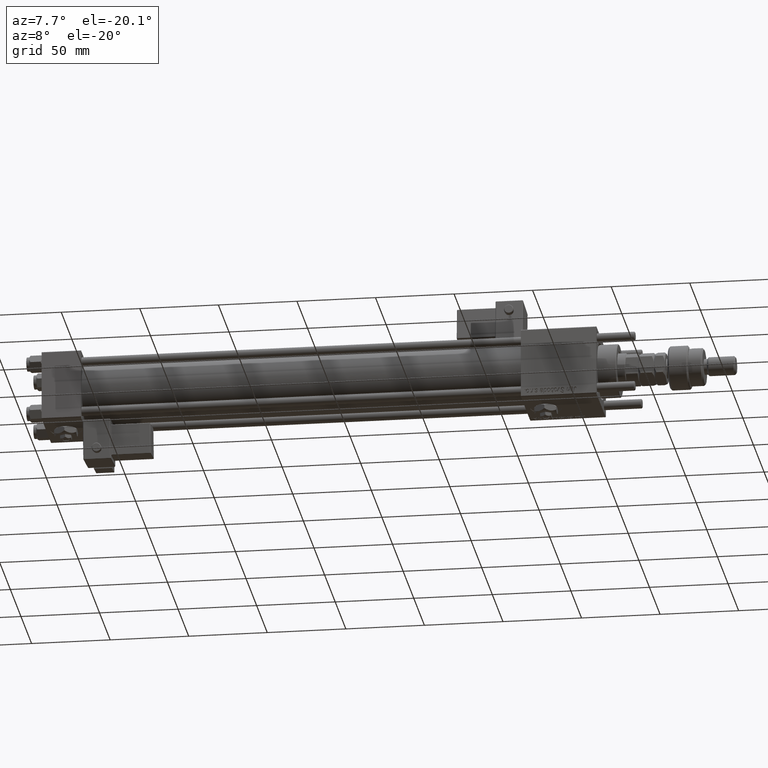
[diagram: clean part render]
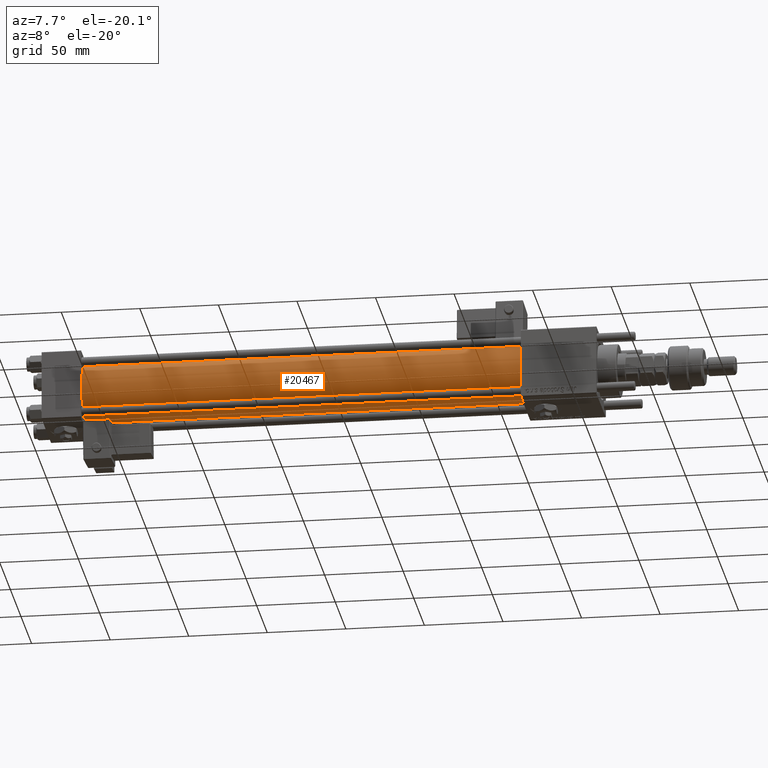
[diagram: same view with one face highlighted and labeled with its STEP entity id]
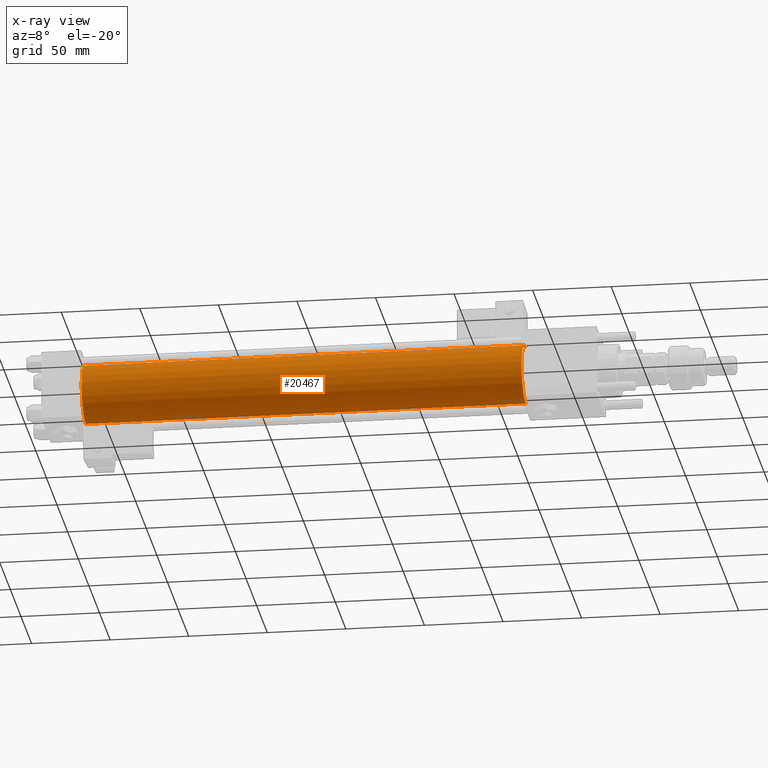
[diagram: x-ray of the same camera — body ghosted, the highlighted face saturated]
A machine part, auxiliary view. The second image highlights one B-rep face of the part: STEP entity #20467.
The next image is the same camera in x-ray: the body ghosted, the highlighted face saturated — about 0% of this face is hidden behind the body in this view.
In plain terms, the highlighted cylindrical surface (edge-blend (fillet) strip) has radius 19 mm, axis along (-1, -0, -0).
Its self-contained STEP definition (entity closure, byte-faithful):
#2014 = VERTEX_POINT ( 'NONE', #29215 ) ;
#5037 = CARTESIAN_POINT ( 'NONE',  ( 305.0000000000000568, -2.752562955852396712E-16, -19.00000000000000000 ) ) ;
#5765 = ORIENTED_EDGE ( 'NONE', *, *, #8052, .T. ) ;
#6233 = EDGE_CURVE ( 'NONE', #9288, #2014, #46553, .T. ) ;
#7183 = LINE ( 'NONE', #5037, #56667 ) ;
#8035 = CARTESIAN_POINT ( 'NONE',  ( 305.0000000000000568, -2.602085213965210642E-15, 19.00000000000000000 ) ) ;
#8052 = EDGE_CURVE ( 'NONE', #45481, #31322, #61033, .T. ) ;
#8187 = DIRECTION ( 'NONE',  ( -1.000000000000000000, -0.000000000000000000, -0.000000000000000000 ) ) ;
#9288 = VERTEX_POINT ( 'NONE', #8035 ) ;
#10377 = DIRECTION ( 'NONE',  ( -1.000000000000000000, -0.000000000000000000, -0.000000000000000000 ) ) ;
#10524 = DIRECTION ( 'NONE',  ( -1.000000000000000000, -0.000000000000000000, -0.000000000000000000 ) ) ;
#11315 = CARTESIAN_POINT ( 'NONE',  ( 305.0000000000000568, -2.602085213965210642E-15, 19.00000000000000000 ) ) ;
#11999 = CARTESIAN_POINT ( 'NONE',  ( 25.00000000000002132, -2.602085213965210642E-15, 19.00000000000000000 ) ) ;
#15381 = DIRECTION ( 'NONE',  ( 0.000000000000000000, 0.000000000000000000, -1.000000000000000000 ) ) ;
#15549 = LINE ( 'NONE', #11315, #34699 ) ;
#17813 = DIRECTION ( 'NONE',  ( 1.000000000000000000, -0.000000000000000000, 0.000000000000000000 ) ) ;
#18214 = FACE_OUTER_BOUND ( 'NONE', #27316, .T. ) ;
#18902 = CARTESIAN_POINT ( 'NONE',  ( 25.00000000000002132, -2.752562955852396712E-16, -19.00000000000000000 ) ) ;
#20467 = ADVANCED_FACE ( 'NONE', ( #18214 ), #23046, .T. ) ;
#22314 = ORIENTED_EDGE ( 'NONE', *, *, #22862, .T. ) ;
#22862 = EDGE_CURVE ( 'NONE', #9288, #45481, #15549, .T. ) ;
#23046 = CYLINDRICAL_SURFACE ( 'NONE', #58283, 19.00000000000000000 ) ;
#24501 = ORIENTED_EDGE ( 'NONE', *, *, #31914, .F. ) ;
#27316 = EDGE_LOOP ( 'NONE', ( #24501, #47418, #22314, #5765 ) ) ;
#29215 = CARTESIAN_POINT ( 'NONE',  ( 305.0000000000000568, -2.752562955852396712E-16, -19.00000000000000000 ) ) ;
#30059 = AXIS2_PLACEMENT_3D ( 'NONE', #49950, #59648, #15381 ) ;
#31322 = VERTEX_POINT ( 'NONE', #18902 ) ;
#31914 = EDGE_CURVE ( 'NONE', #2014, #31322, #7183, .T. ) ;
#34699 = VECTOR ( 'NONE', #10377, 1000.000000000000000 ) ;
#36998 = CARTESIAN_POINT ( 'NONE',  ( 305.0000000000000568, -2.602085213965210642E-15, 0.000000000000000000 ) ) ;
#41443 = AXIS2_PLACEMENT_3D ( 'NONE', #42383, #17813, #43335 ) ;
#42383 = CARTESIAN_POINT ( 'NONE',  ( 25.00000000000002132, -2.602085213965210642E-15, 0.000000000000000000 ) ) ;
#43335 = DIRECTION ( 'NONE',  ( 0.000000000000000000, 0.000000000000000000, 1.000000000000000000 ) ) ;
#45481 = VERTEX_POINT ( 'NONE', #11999 ) ;
#46553 = CIRCLE ( 'NONE', #30059, 19.00000000000000000 ) ;
#47418 = ORIENTED_EDGE ( 'NONE', *, *, #6233, .F. ) ;
#49950 = CARTESIAN_POINT ( 'NONE',  ( 305.0000000000000568, -2.602085213965210642E-15, 0.000000000000000000 ) ) ;
#56667 = VECTOR ( 'NONE', #10524, 1000.000000000000000 ) ;
#57002 = DIRECTION ( 'NONE',  ( 0.000000000000000000, 0.000000000000000000, 1.000000000000000000 ) ) ;
#58283 = AXIS2_PLACEMENT_3D ( 'NONE', #36998, #8187, #57002 ) ;
#59648 = DIRECTION ( 'NONE',  ( 1.000000000000000000, 0.000000000000000000, 0.000000000000000000 ) ) ;
#61033 = CIRCLE ( 'NONE', #41443, 19.00000000000000000 ) ;